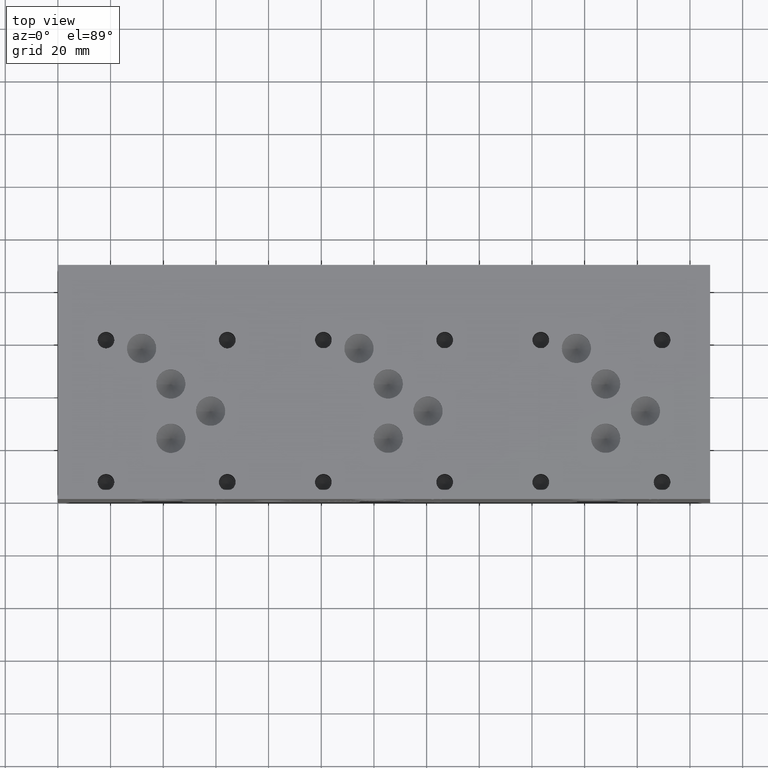
[diagram: clean part render]
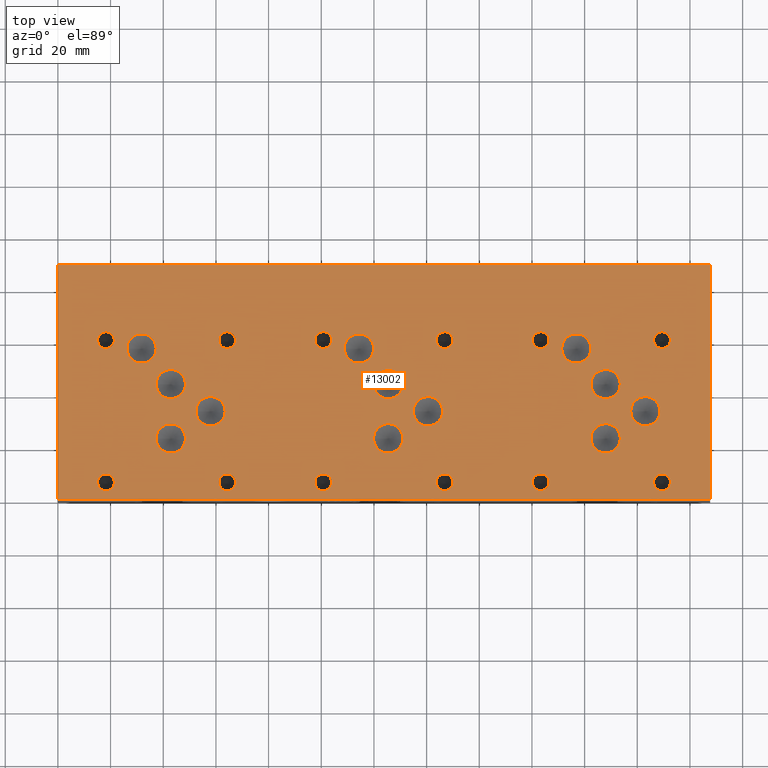
[diagram: same view with one face highlighted and labeled with its STEP entity id]
A machine part, top view. The second image highlights one B-rep face of the part: STEP entity #13002.
In plain terms, the highlighted planar face has unit normal (0, 0, 1).
Its self-contained STEP definition (entity closure, byte-faithful):
#405=CIRCLE('',#13536,5.55625);
#406=CIRCLE('',#13537,5.55625);
#409=CIRCLE('',#13542,5.5626);
#410=CIRCLE('',#13543,5.5626);
#413=CIRCLE('',#13548,5.5626);
#414=CIRCLE('',#13549,5.5626);
#417=CIRCLE('',#13554,5.5626);
#418=CIRCLE('',#13555,5.5626);
#421=CIRCLE('',#13560,5.5626);
#422=CIRCLE('',#13561,5.5626);
#425=CIRCLE('',#13566,5.5626);
#426=CIRCLE('',#13567,5.5626);
#429=CIRCLE('',#13572,5.5626);
#430=CIRCLE('',#13573,5.5626);
#433=CIRCLE('',#13578,5.5626);
#434=CIRCLE('',#13579,5.5626);
#437=CIRCLE('',#13584,5.5626);
#438=CIRCLE('',#13585,5.5626);
#441=CIRCLE('',#13590,5.5626);
#442=CIRCLE('',#13591,5.5626);
#445=CIRCLE('',#13596,5.5626);
#446=CIRCLE('',#13597,5.5626);
#449=CIRCLE('',#13602,5.5626);
#450=CIRCLE('',#13603,5.5626);
#456=CIRCLE('',#13612,3.175);
#457=CIRCLE('',#13613,3.175);
#463=CIRCLE('',#13623,3.175);
#464=CIRCLE('',#13624,3.175);
#470=CIRCLE('',#13634,3.175);
#471=CIRCLE('',#13635,3.175);
#477=CIRCLE('',#13645,3.175);
#478=CIRCLE('',#13646,3.175);
#484=CIRCLE('',#13656,3.175);
#485=CIRCLE('',#13657,3.175);
#491=CIRCLE('',#13667,3.175);
#492=CIRCLE('',#13668,3.175);
#498=CIRCLE('',#13678,3.175);
#499=CIRCLE('',#13679,3.175);
#505=CIRCLE('',#13689,3.175);
#506=CIRCLE('',#13690,3.175);
#512=CIRCLE('',#13700,3.175);
#513=CIRCLE('',#13701,3.175);
#519=CIRCLE('',#13711,3.175);
#520=CIRCLE('',#13712,3.175);
#526=CIRCLE('',#13722,3.175);
#527=CIRCLE('',#13723,3.175);
#533=CIRCLE('',#13733,3.175);
#534=CIRCLE('',#13734,3.175);
#985=FACE_BOUND('',#2432,.T.);
#986=FACE_BOUND('',#2433,.T.);
#987=FACE_BOUND('',#2434,.T.);
#988=FACE_BOUND('',#2435,.T.);
#989=FACE_BOUND('',#2436,.T.);
#990=FACE_BOUND('',#2437,.T.);
#991=FACE_BOUND('',#2438,.T.);
#992=FACE_BOUND('',#2439,.T.);
#993=FACE_BOUND('',#2440,.T.);
#994=FACE_BOUND('',#2441,.T.);
#995=FACE_BOUND('',#2442,.T.);
#996=FACE_BOUND('',#2443,.T.);
#997=FACE_BOUND('',#2444,.T.);
#998=FACE_BOUND('',#2445,.T.);
#999=FACE_BOUND('',#2446,.T.);
#1000=FACE_BOUND('',#2447,.T.);
#1001=FACE_BOUND('',#2448,.T.);
#1002=FACE_BOUND('',#2449,.T.);
#1003=FACE_BOUND('',#2450,.T.);
#1004=FACE_BOUND('',#2451,.T.);
#1005=FACE_BOUND('',#2452,.T.);
#1006=FACE_BOUND('',#2453,.T.);
#1007=FACE_BOUND('',#2454,.T.);
#1008=FACE_BOUND('',#2455,.T.);
#1673=FACE_OUTER_BOUND('',#2431,.T.);
#2431=EDGE_LOOP('',(#11391,#11392,#11393,#11394));
#2432=EDGE_LOOP('',(#11395,#11396));
#2433=EDGE_LOOP('',(#11397,#11398));
#2434=EDGE_LOOP('',(#11399,#11400));
#2435=EDGE_LOOP('',(#11401,#11402));
#2436=EDGE_LOOP('',(#11403,#11404));
#2437=EDGE_LOOP('',(#11405,#11406));
#2438=EDGE_LOOP('',(#11407,#11408));
#2439=EDGE_LOOP('',(#11409,#11410));
#2440=EDGE_LOOP('',(#11411,#11412));
#2441=EDGE_LOOP('',(#11413,#11414));
#2442=EDGE_LOOP('',(#11415,#11416));
#2443=EDGE_LOOP('',(#11417,#11418));
#2444=EDGE_LOOP('',(#11419,#11420));
#2445=EDGE_LOOP('',(#11421,#11422));
#2446=EDGE_LOOP('',(#11423,#11424));
#2447=EDGE_LOOP('',(#11425,#11426));
#2448=EDGE_LOOP('',(#11427,#11428));
#2449=EDGE_LOOP('',(#11429,#11430));
#2450=EDGE_LOOP('',(#11431,#11432));
#2451=EDGE_LOOP('',(#11433,#11434));
#2452=EDGE_LOOP('',(#11435,#11436));
#2453=EDGE_LOOP('',(#11437,#11438));
#2454=EDGE_LOOP('',(#11439,#11440));
#2455=EDGE_LOOP('',(#11441,#11442));
#2492=LINE('',#16460,#3685);
#3393=LINE('',#21027,#4586);
#3453=LINE('',#21300,#4646);
#3649=LINE('',#22402,#4842);
#3685=VECTOR('',#13805,10.);
#4586=VECTOR('',#15298,10.);
#4646=VECTOR('',#15412,10.);
#4842=VECTOR('',#16376,10.);
#4867=VERTEX_POINT('',#16457);
#4868=VERTEX_POINT('',#16459);
#5702=VERTEX_POINT('',#21026);
#5760=VERTEX_POINT('',#21298);
#5930=VERTEX_POINT('',#21987);
#5931=VERTEX_POINT('',#21988);
#5935=VERTEX_POINT('',#22000);
#5936=VERTEX_POINT('',#22001);
#5940=VERTEX_POINT('',#22013);
#5941=VERTEX_POINT('',#22014);
#5945=VERTEX_POINT('',#22026);
#5946=VERTEX_POINT('',#22027);
#5950=VERTEX_POINT('',#22039);
#5951=VERTEX_POINT('',#22040);
#5955=VERTEX_POINT('',#22052);
#5956=VERTEX_POINT('',#22053);
#5960=VERTEX_POINT('',#22065);
#5961=VERTEX_POINT('',#22066);
#5965=VERTEX_POINT('',#22078);
#5966=VERTEX_POINT('',#22079);
#5970=VERTEX_POINT('',#22091);
#5971=VERTEX_POINT('',#22092);
#5975=VERTEX_POINT('',#22104);
#5976=VERTEX_POINT('',#22105);
#5980=VERTEX_POINT('',#22117);
#5981=VERTEX_POINT('',#22118);
#5985=VERTEX_POINT('',#22130);
#5986=VERTEX_POINT('',#22131);
#5993=VERTEX_POINT('',#22150);
#5994=VERTEX_POINT('',#22151);
#6001=VERTEX_POINT('',#22172);
#6002=VERTEX_POINT('',#22173);
#6009=VERTEX_POINT('',#22194);
#6010=VERTEX_POINT('',#22195);
#6017=VERTEX_POINT('',#22216);
#6018=VERTEX_POINT('',#22217);
#6025=VERTEX_POINT('',#22238);
#6026=VERTEX_POINT('',#22239);
#6033=VERTEX_POINT('',#22260);
#6034=VERTEX_POINT('',#22261);
#6041=VERTEX_POINT('',#22282);
#6042=VERTEX_POINT('',#22283);
#6049=VERTEX_POINT('',#22304);
#6050=VERTEX_POINT('',#22305);
#6057=VERTEX_POINT('',#22326);
#6058=VERTEX_POINT('',#22327);
#6065=VERTEX_POINT('',#22348);
#6066=VERTEX_POINT('',#22349);
#6073=VERTEX_POINT('',#22370);
#6074=VERTEX_POINT('',#22371);
#6081=VERTEX_POINT('',#22392);
#6082=VERTEX_POINT('',#22393);
#6118=EDGE_CURVE('',#4868,#4867,#2492,.T.);
#7353=EDGE_CURVE('',#5702,#4868,#3393,.T.);
#7437=EDGE_CURVE('',#4867,#5760,#3453,.T.);
#7680=EDGE_CURVE('',#5930,#5931,#405,.T.);
#7681=EDGE_CURVE('',#5931,#5930,#406,.T.);
#7686=EDGE_CURVE('',#5935,#5936,#409,.T.);
#7687=EDGE_CURVE('',#5936,#5935,#410,.T.);
#7692=EDGE_CURVE('',#5940,#5941,#413,.T.);
#7693=EDGE_CURVE('',#5941,#5940,#414,.T.);
#7698=EDGE_CURVE('',#5945,#5946,#417,.T.);
#7699=EDGE_CURVE('',#5946,#5945,#418,.T.);
#7704=EDGE_CURVE('',#5950,#5951,#421,.T.);
#7705=EDGE_CURVE('',#5951,#5950,#422,.T.);
#7710=EDGE_CURVE('',#5955,#5956,#425,.T.);
#7711=EDGE_CURVE('',#5956,#5955,#426,.T.);
#7716=EDGE_CURVE('',#5960,#5961,#429,.T.);
#7717=EDGE_CURVE('',#5961,#5960,#430,.T.);
#7722=EDGE_CURVE('',#5965,#5966,#433,.T.);
#7723=EDGE_CURVE('',#5966,#5965,#434,.T.);
#7728=EDGE_CURVE('',#5970,#5971,#437,.T.);
#7729=EDGE_CURVE('',#5971,#5970,#438,.T.);
#7734=EDGE_CURVE('',#5975,#5976,#441,.T.);
#7735=EDGE_CURVE('',#5976,#5975,#442,.T.);
#7740=EDGE_CURVE('',#5980,#5981,#445,.T.);
#7741=EDGE_CURVE('',#5981,#5980,#446,.T.);
#7746=EDGE_CURVE('',#5985,#5986,#449,.T.);
#7747=EDGE_CURVE('',#5986,#5985,#450,.T.);
#7755=EDGE_CURVE('',#5993,#5994,#456,.T.);
#7756=EDGE_CURVE('',#5994,#5993,#457,.T.);
#7765=EDGE_CURVE('',#6001,#6002,#463,.T.);
#7766=EDGE_CURVE('',#6002,#6001,#464,.T.);
#7775=EDGE_CURVE('',#6009,#6010,#470,.T.);
#7776=EDGE_CURVE('',#6010,#6009,#471,.T.);
#7785=EDGE_CURVE('',#6017,#6018,#477,.T.);
#7786=EDGE_CURVE('',#6018,#6017,#478,.T.);
#7795=EDGE_CURVE('',#6025,#6026,#484,.T.);
#7796=EDGE_CURVE('',#6026,#6025,#485,.T.);
#7805=EDGE_CURVE('',#6033,#6034,#491,.T.);
#7806=EDGE_CURVE('',#6034,#6033,#492,.T.);
#7815=EDGE_CURVE('',#6041,#6042,#498,.T.);
#7816=EDGE_CURVE('',#6042,#6041,#499,.T.);
#7825=EDGE_CURVE('',#6049,#6050,#505,.T.);
#7826=EDGE_CURVE('',#6050,#6049,#506,.T.);
#7835=EDGE_CURVE('',#6057,#6058,#512,.T.);
#7836=EDGE_CURVE('',#6058,#6057,#513,.T.);
#7845=EDGE_CURVE('',#6065,#6066,#519,.T.);
#7846=EDGE_CURVE('',#6066,#6065,#520,.T.);
#7855=EDGE_CURVE('',#6073,#6074,#526,.T.);
#7856=EDGE_CURVE('',#6074,#6073,#527,.T.);
#7865=EDGE_CURVE('',#6081,#6082,#533,.T.);
#7866=EDGE_CURVE('',#6082,#6081,#534,.T.);
#7870=EDGE_CURVE('',#5760,#5702,#3649,.T.);
#11391=ORIENTED_EDGE('',*,*,#6118,.T.);
#11392=ORIENTED_EDGE('',*,*,#7437,.T.);
#11393=ORIENTED_EDGE('',*,*,#7870,.T.);
#11394=ORIENTED_EDGE('',*,*,#7353,.T.);
#11395=ORIENTED_EDGE('',*,*,#7680,.T.);
#11396=ORIENTED_EDGE('',*,*,#7681,.T.);
#11397=ORIENTED_EDGE('',*,*,#7686,.T.);
#11398=ORIENTED_EDGE('',*,*,#7687,.T.);
#11399=ORIENTED_EDGE('',*,*,#7692,.T.);
#11400=ORIENTED_EDGE('',*,*,#7693,.T.);
#11401=ORIENTED_EDGE('',*,*,#7698,.T.);
#11402=ORIENTED_EDGE('',*,*,#7699,.T.);
#11403=ORIENTED_EDGE('',*,*,#7704,.T.);
#11404=ORIENTED_EDGE('',*,*,#7705,.T.);
#11405=ORIENTED_EDGE('',*,*,#7710,.T.);
#11406=ORIENTED_EDGE('',*,*,#7711,.T.);
#11407=ORIENTED_EDGE('',*,*,#7716,.T.);
#11408=ORIENTED_EDGE('',*,*,#7717,.T.);
#11409=ORIENTED_EDGE('',*,*,#7722,.T.);
#11410=ORIENTED_EDGE('',*,*,#7723,.T.);
#11411=ORIENTED_EDGE('',*,*,#7728,.T.);
#11412=ORIENTED_EDGE('',*,*,#7729,.T.);
#11413=ORIENTED_EDGE('',*,*,#7734,.T.);
#11414=ORIENTED_EDGE('',*,*,#7735,.T.);
#11415=ORIENTED_EDGE('',*,*,#7740,.T.);
#11416=ORIENTED_EDGE('',*,*,#7741,.T.);
#11417=ORIENTED_EDGE('',*,*,#7746,.T.);
#11418=ORIENTED_EDGE('',*,*,#7747,.T.);
#11419=ORIENTED_EDGE('',*,*,#7755,.T.);
#11420=ORIENTED_EDGE('',*,*,#7756,.T.);
#11421=ORIENTED_EDGE('',*,*,#7765,.T.);
#11422=ORIENTED_EDGE('',*,*,#7766,.T.);
#11423=ORIENTED_EDGE('',*,*,#7775,.T.);
#11424=ORIENTED_EDGE('',*,*,#7776,.T.);
#11425=ORIENTED_EDGE('',*,*,#7785,.T.);
#11426=ORIENTED_EDGE('',*,*,#7786,.T.);
#11427=ORIENTED_EDGE('',*,*,#7795,.T.);
#11428=ORIENTED_EDGE('',*,*,#7796,.T.);
#11429=ORIENTED_EDGE('',*,*,#7805,.T.);
#11430=ORIENTED_EDGE('',*,*,#7806,.T.);
#11431=ORIENTED_EDGE('',*,*,#7815,.T.);
#11432=ORIENTED_EDGE('',*,*,#7816,.T.);
#11433=ORIENTED_EDGE('',*,*,#7825,.T.);
#11434=ORIENTED_EDGE('',*,*,#7826,.T.);
#11435=ORIENTED_EDGE('',*,*,#7835,.T.);
#11436=ORIENTED_EDGE('',*,*,#7836,.T.);
#11437=ORIENTED_EDGE('',*,*,#7845,.T.);
#11438=ORIENTED_EDGE('',*,*,#7846,.T.);
#11439=ORIENTED_EDGE('',*,*,#7855,.T.);
#11440=ORIENTED_EDGE('',*,*,#7856,.T.);
#11441=ORIENTED_EDGE('',*,*,#7865,.T.);
#11442=ORIENTED_EDGE('',*,*,#7866,.T.);
#11827=PLANE('',#13740);
#13002=ADVANCED_FACE('',(#1673,#985,#986,#987,#988,#989,#990,#991,#992,
#993,#994,#995,#996,#997,#998,#999,#1000,#1001,#1002,#1003,#1004,#1005,
#1006,#1007,#1008),#11827,.T.);
#13536=AXIS2_PLACEMENT_3D('',#21989,#15912,#15913);
#13537=AXIS2_PLACEMENT_3D('',#21990,#15914,#15915);
#13542=AXIS2_PLACEMENT_3D('',#22002,#15926,#15927);
#13543=AXIS2_PLACEMENT_3D('',#22003,#15928,#15929);
#13548=AXIS2_PLACEMENT_3D('',#22015,#15940,#15941);
#13549=AXIS2_PLACEMENT_3D('',#22016,#15942,#15943);
#13554=AXIS2_PLACEMENT_3D('',#22028,#15954,#15955);
#13555=AXIS2_PLACEMENT_3D('',#22029,#15956,#15957);
#13560=AXIS2_PLACEMENT_3D('',#22041,#15968,#15969);
#13561=AXIS2_PLACEMENT_3D('',#22042,#15970,#15971);
#13566=AXIS2_PLACEMENT_3D('',#22054,#15982,#15983);
#13567=AXIS2_PLACEMENT_3D('',#22055,#15984,#15985);
#13572=AXIS2_PLACEMENT_3D('',#22067,#15996,#15997);
#13573=AXIS2_PLACEMENT_3D('',#22068,#15998,#15999);
#13578=AXIS2_PLACEMENT_3D('',#22080,#16010,#16011);
#13579=AXIS2_PLACEMENT_3D('',#22081,#16012,#16013);
#13584=AXIS2_PLACEMENT_3D('',#22093,#16024,#16025);
#13585=AXIS2_PLACEMENT_3D('',#22094,#16026,#16027);
#13590=AXIS2_PLACEMENT_3D('',#22106,#16038,#16039);
#13591=AXIS2_PLACEMENT_3D('',#22107,#16040,#16041);
#13596=AXIS2_PLACEMENT_3D('',#22119,#16052,#16053);
#13597=AXIS2_PLACEMENT_3D('',#22120,#16054,#16055);
#13602=AXIS2_PLACEMENT_3D('',#22132,#16066,#16067);
#13603=AXIS2_PLACEMENT_3D('',#22133,#16068,#16069);
#13612=AXIS2_PLACEMENT_3D('',#22152,#16088,#16089);
#13613=AXIS2_PLACEMENT_3D('',#22153,#16090,#16091);
#13623=AXIS2_PLACEMENT_3D('',#22174,#16113,#16114);
#13624=AXIS2_PLACEMENT_3D('',#22175,#16115,#16116);
#13634=AXIS2_PLACEMENT_3D('',#22196,#16138,#16139);
#13635=AXIS2_PLACEMENT_3D('',#22197,#16140,#16141);
#13645=AXIS2_PLACEMENT_3D('',#22218,#16163,#16164);
#13646=AXIS2_PLACEMENT_3D('',#22219,#16165,#16166);
#13656=AXIS2_PLACEMENT_3D('',#22240,#16188,#16189);
#13657=AXIS2_PLACEMENT_3D('',#22241,#16190,#16191);
#13667=AXIS2_PLACEMENT_3D('',#22262,#16213,#16214);
#13668=AXIS2_PLACEMENT_3D('',#22263,#16215,#16216);
#13678=AXIS2_PLACEMENT_3D('',#22284,#16238,#16239);
#13679=AXIS2_PLACEMENT_3D('',#22285,#16240,#16241);
#13689=AXIS2_PLACEMENT_3D('',#22306,#16263,#16264);
#13690=AXIS2_PLACEMENT_3D('',#22307,#16265,#16266);
#13700=AXIS2_PLACEMENT_3D('',#22328,#16288,#16289);
#13701=AXIS2_PLACEMENT_3D('',#22329,#16290,#16291);
#13711=AXIS2_PLACEMENT_3D('',#22350,#16313,#16314);
#13712=AXIS2_PLACEMENT_3D('',#22351,#16315,#16316);
#13722=AXIS2_PLACEMENT_3D('',#22372,#16338,#16339);
#13723=AXIS2_PLACEMENT_3D('',#22373,#16340,#16341);
#13733=AXIS2_PLACEMENT_3D('',#22394,#16363,#16364);
#13734=AXIS2_PLACEMENT_3D('',#22395,#16365,#16366);
#13740=AXIS2_PLACEMENT_3D('',#22405,#16381,#16382);
#13805=DIRECTION('',(1.,0.,0.));
#15298=DIRECTION('',(0.,-1.,0.));
#15412=DIRECTION('',(0.,1.,0.));
#15912=DIRECTION('center_axis',(0.,0.,-1.));
#15913=DIRECTION('ref_axis',(1.,0.,0.));
#15914=DIRECTION('center_axis',(0.,0.,-1.));
#15915=DIRECTION('ref_axis',(1.,0.,0.));
#15926=DIRECTION('center_axis',(0.,0.,-1.));
#15927=DIRECTION('ref_axis',(1.,0.,0.));
#15928=DIRECTION('center_axis',(0.,0.,-1.));
#15929=DIRECTION('ref_axis',(1.,0.,0.));
#15940=DIRECTION('center_axis',(0.,0.,-1.));
#15941=DIRECTION('ref_axis',(1.,0.,0.));
#15942=DIRECTION('center_axis',(0.,0.,-1.));
#15943=DIRECTION('ref_axis',(1.,0.,0.));
#15954=DIRECTION('center_axis',(0.,0.,-1.));
#15955=DIRECTION('ref_axis',(1.,0.,0.));
#15956=DIRECTION('center_axis',(0.,0.,-1.));
#15957=DIRECTION('ref_axis',(1.,0.,0.));
#15968=DIRECTION('center_axis',(0.,0.,-1.));
#15969=DIRECTION('ref_axis',(1.,0.,0.));
#15970=DIRECTION('center_axis',(0.,0.,-1.));
#15971=DIRECTION('ref_axis',(1.,0.,0.));
#15982=DIRECTION('center_axis',(0.,0.,-1.));
#15983=DIRECTION('ref_axis',(1.,0.,0.));
#15984=DIRECTION('center_axis',(0.,0.,-1.));
#15985=DIRECTION('ref_axis',(1.,0.,0.));
#15996=DIRECTION('center_axis',(0.,0.,-1.));
#15997=DIRECTION('ref_axis',(1.,0.,0.));
#15998=DIRECTION('center_axis',(0.,0.,-1.));
#15999=DIRECTION('ref_axis',(1.,0.,0.));
#16010=DIRECTION('center_axis',(0.,0.,-1.));
#16011=DIRECTION('ref_axis',(1.,0.,0.));
#16012=DIRECTION('center_axis',(0.,0.,-1.));
#16013=DIRECTION('ref_axis',(1.,0.,0.));
#16024=DIRECTION('center_axis',(0.,0.,-1.));
#16025=DIRECTION('ref_axis',(1.,0.,0.));
#16026=DIRECTION('center_axis',(0.,0.,-1.));
#16027=DIRECTION('ref_axis',(1.,0.,0.));
#16038=DIRECTION('center_axis',(0.,0.,-1.));
#16039=DIRECTION('ref_axis',(1.,0.,0.));
#16040=DIRECTION('center_axis',(0.,0.,-1.));
#16041=DIRECTION('ref_axis',(1.,0.,0.));
#16052=DIRECTION('center_axis',(0.,0.,-1.));
#16053=DIRECTION('ref_axis',(1.,0.,0.));
#16054=DIRECTION('center_axis',(0.,0.,-1.));
#16055=DIRECTION('ref_axis',(1.,0.,0.));
#16066=DIRECTION('center_axis',(0.,0.,-1.));
#16067=DIRECTION('ref_axis',(1.,0.,0.));
#16068=DIRECTION('center_axis',(0.,0.,-1.));
#16069=DIRECTION('ref_axis',(1.,0.,0.));
#16088=DIRECTION('center_axis',(0.,0.,-1.));
#16089=DIRECTION('ref_axis',(1.,0.,0.));
#16090=DIRECTION('center_axis',(0.,0.,-1.));
#16091=DIRECTION('ref_axis',(1.,0.,0.));
#16113=DIRECTION('center_axis',(0.,0.,-1.));
#16114=DIRECTION('ref_axis',(1.,0.,0.));
#16115=DIRECTION('center_axis',(0.,0.,-1.));
#16116=DIRECTION('ref_axis',(1.,0.,0.));
#16138=DIRECTION('center_axis',(0.,0.,-1.));
#16139=DIRECTION('ref_axis',(1.,0.,0.));
#16140=DIRECTION('center_axis',(0.,0.,-1.));
#16141=DIRECTION('ref_axis',(1.,0.,0.));
#16163=DIRECTION('center_axis',(0.,0.,-1.));
#16164=DIRECTION('ref_axis',(1.,0.,0.));
#16165=DIRECTION('center_axis',(0.,0.,-1.));
#16166=DIRECTION('ref_axis',(1.,0.,0.));
#16188=DIRECTION('center_axis',(0.,0.,-1.));
#16189=DIRECTION('ref_axis',(1.,0.,0.));
#16190=DIRECTION('center_axis',(0.,0.,-1.));
#16191=DIRECTION('ref_axis',(1.,0.,0.));
#16213=DIRECTION('center_axis',(0.,0.,-1.));
#16214=DIRECTION('ref_axis',(1.,0.,0.));
#16215=DIRECTION('center_axis',(0.,0.,-1.));
#16216=DIRECTION('ref_axis',(1.,0.,0.));
#16238=DIRECTION('center_axis',(0.,0.,-1.));
#16239=DIRECTION('ref_axis',(1.,0.,0.));
#16240=DIRECTION('center_axis',(0.,0.,-1.));
#16241=DIRECTION('ref_axis',(1.,0.,0.));
#16263=DIRECTION('center_axis',(0.,0.,-1.));
#16264=DIRECTION('ref_axis',(1.,0.,0.));
#16265=DIRECTION('center_axis',(0.,0.,-1.));
#16266=DIRECTION('ref_axis',(1.,0.,0.));
#16288=DIRECTION('center_axis',(0.,0.,-1.));
#16289=DIRECTION('ref_axis',(1.,0.,0.));
#16290=DIRECTION('center_axis',(0.,0.,-1.));
#16291=DIRECTION('ref_axis',(1.,0.,0.));
#16313=DIRECTION('center_axis',(0.,0.,-1.));
#16314=DIRECTION('ref_axis',(1.,0.,0.));
#16315=DIRECTION('center_axis',(0.,0.,-1.));
#16316=DIRECTION('ref_axis',(1.,0.,0.));
#16338=DIRECTION('center_axis',(0.,0.,-1.));
#16339=DIRECTION('ref_axis',(1.,0.,0.));
#16340=DIRECTION('center_axis',(0.,0.,-1.));
#16341=DIRECTION('ref_axis',(1.,0.,0.));
#16363=DIRECTION('center_axis',(0.,0.,-1.));
#16364=DIRECTION('ref_axis',(1.,0.,0.));
#16365=DIRECTION('center_axis',(0.,0.,-1.));
#16366=DIRECTION('ref_axis',(1.,0.,0.));
#16376=DIRECTION('',(-1.,0.,0.));
#16381=DIRECTION('center_axis',(0.,0.,1.));
#16382=DIRECTION('ref_axis',(1.,0.,0.));
#16457=CARTESIAN_POINT('',(247.65,0.,88.9));
#16459=CARTESIAN_POINT('',(0.,0.,88.9));
#16460=CARTESIAN_POINT('',(0.,0.,88.9));
#21026=CARTESIAN_POINT('',(0.,88.9,88.9));
#21027=CARTESIAN_POINT('',(0.,88.9,88.9));
#21298=CARTESIAN_POINT('',(247.65,88.9,88.9));
#21300=CARTESIAN_POINT('',(247.65,0.,88.9));
#21987=CARTESIAN_POINT('',(48.41875,43.64228,88.9));
#21988=CARTESIAN_POINT('',(37.30625,43.64228,88.9));
#21989=CARTESIAN_POINT('Origin',(42.8625,43.64228,88.9));
#21990=CARTESIAN_POINT('Origin',(42.8625,43.64228,88.9));
#22000=CARTESIAN_POINT('',(213.5378,43.6499,88.9));
#22001=CARTESIAN_POINT('',(202.4126,43.6499,88.9));
#22002=CARTESIAN_POINT('Origin',(207.9752,43.6499,88.9));
#22003=CARTESIAN_POINT('Origin',(207.9752,43.6499,88.9));
#22013=CARTESIAN_POINT('',(228.6254,33.3629,88.9));
#22014=CARTESIAN_POINT('',(217.5002,33.3629,88.9));
#22015=CARTESIAN_POINT('Origin',(223.0628,33.3629,88.9));
#22016=CARTESIAN_POINT('Origin',(223.0628,33.3629,88.9));
#22026=CARTESIAN_POINT('',(130.9878,43.6499,88.9));
#22027=CARTESIAN_POINT('',(119.8626,43.6499,88.9));
#22028=CARTESIAN_POINT('Origin',(125.4252,43.6499,88.9));
#22029=CARTESIAN_POINT('Origin',(125.4252,43.6499,88.9));
#22039=CARTESIAN_POINT('',(146.0754,33.3375,88.9));
#22040=CARTESIAN_POINT('',(134.9502,33.3375,88.9));
#22041=CARTESIAN_POINT('Origin',(140.5128,33.3375,88.9));
#22042=CARTESIAN_POINT('Origin',(140.5128,33.3375,88.9));
#22052=CARTESIAN_POINT('',(37.3126,57.15,88.9));
#22053=CARTESIAN_POINT('',(26.1874,57.15,88.9));
#22054=CARTESIAN_POINT('Origin',(31.75,57.15,88.9));
#22055=CARTESIAN_POINT('Origin',(31.75,57.15,88.9));
#22065=CARTESIAN_POINT('',(63.5254,33.3248,88.9));
#22066=CARTESIAN_POINT('',(52.4002,33.3248,88.9));
#22067=CARTESIAN_POINT('Origin',(57.9628,33.3248,88.9));
#22068=CARTESIAN_POINT('Origin',(57.9628,33.3248,88.9));
#22078=CARTESIAN_POINT('',(48.43018,23.00732,88.9));
#22079=CARTESIAN_POINT('',(37.30498,23.00732,88.9));
#22080=CARTESIAN_POINT('Origin',(42.86758,23.00732,88.9));
#22081=CARTESIAN_POINT('Origin',(42.86758,23.00732,88.9));
#22091=CARTESIAN_POINT('',(119.8626,57.1627,88.9));
#22092=CARTESIAN_POINT('',(108.7374,57.1627,88.9));
#22093=CARTESIAN_POINT('Origin',(114.3,57.1627,88.9));
#22094=CARTESIAN_POINT('Origin',(114.3,57.1627,88.9));
#22104=CARTESIAN_POINT('',(130.9878,23.0251,88.9));
#22105=CARTESIAN_POINT('',(119.8626,23.0251,88.9));
#22106=CARTESIAN_POINT('Origin',(125.4252,23.0251,88.9));
#22107=CARTESIAN_POINT('Origin',(125.4252,23.0251,88.9));
#22117=CARTESIAN_POINT('',(202.4126,57.1627,88.9));
#22118=CARTESIAN_POINT('',(191.2874,57.1627,88.9));
#22119=CARTESIAN_POINT('Origin',(196.85,57.1627,88.9));
#22120=CARTESIAN_POINT('Origin',(196.85,57.1627,88.9));
#22130=CARTESIAN_POINT('',(213.5378,23.0251,88.9));
#22131=CARTESIAN_POINT('',(202.4126,23.0251,88.9));
#22132=CARTESIAN_POINT('Origin',(207.9752,23.0251,88.9));
#22133=CARTESIAN_POINT('Origin',(207.9752,23.0251,88.9));
#22150=CARTESIAN_POINT('',(232.5624,6.3627,88.9));
#22151=CARTESIAN_POINT('',(226.2124,6.3627,88.9));
#22152=CARTESIAN_POINT('Origin',(229.3874,6.3627,88.9));
#22153=CARTESIAN_POINT('Origin',(229.3874,6.3627,88.9));
#22172=CARTESIAN_POINT('',(186.5122,60.3377,88.9));
#22173=CARTESIAN_POINT('',(180.1622,60.3377,88.9));
#22174=CARTESIAN_POINT('Origin',(183.3372,60.3377,88.9));
#22175=CARTESIAN_POINT('Origin',(183.3372,60.3377,88.9));
#22194=CARTESIAN_POINT('',(150.0124,6.3627,88.9));
#22195=CARTESIAN_POINT('',(143.6624,6.3627,88.9));
#22196=CARTESIAN_POINT('Origin',(146.8374,6.3627,88.9));
#22197=CARTESIAN_POINT('Origin',(146.8374,6.3627,88.9));
#22216=CARTESIAN_POINT('',(103.9622,60.3377,88.9));
#22217=CARTESIAN_POINT('',(97.6122,60.3377,88.9));
#22218=CARTESIAN_POINT('Origin',(100.7872,60.3377,88.9));
#22219=CARTESIAN_POINT('Origin',(100.7872,60.3377,88.9));
#22238=CARTESIAN_POINT('',(67.4624,6.3627,88.9));
#22239=CARTESIAN_POINT('',(61.1124,6.3627,88.9));
#22240=CARTESIAN_POINT('Origin',(64.2874,6.3627,88.9));
#22241=CARTESIAN_POINT('Origin',(64.2874,6.3627,88.9));
#22260=CARTESIAN_POINT('',(21.4122,60.325,88.9));
#22261=CARTESIAN_POINT('',(15.0622,60.325,88.9));
#22262=CARTESIAN_POINT('Origin',(18.2372,60.325,88.9));
#22263=CARTESIAN_POINT('Origin',(18.2372,60.325,88.9));
#22282=CARTESIAN_POINT('',(67.4624,60.325,88.9));
#22283=CARTESIAN_POINT('',(61.1124,60.325,88.9));
#22284=CARTESIAN_POINT('Origin',(64.2874,60.325,88.9));
#22285=CARTESIAN_POINT('Origin',(64.2874,60.325,88.9));
#22304=CARTESIAN_POINT('',(21.4122,6.35,88.9));
#22305=CARTESIAN_POINT('',(15.0622,6.35,88.9));
#22306=CARTESIAN_POINT('Origin',(18.2372,6.35,88.9));
#22307=CARTESIAN_POINT('Origin',(18.2372,6.35,88.9));
#22326=CARTESIAN_POINT('',(150.0124,60.3377,88.9));
#22327=CARTESIAN_POINT('',(143.6624,60.3377,88.9));
#22328=CARTESIAN_POINT('Origin',(146.8374,60.3377,88.9));
#22329=CARTESIAN_POINT('Origin',(146.8374,60.3377,88.9));
#22348=CARTESIAN_POINT('',(103.9622,6.3627,88.9));
#22349=CARTESIAN_POINT('',(97.6122,6.3627,88.9));
#22350=CARTESIAN_POINT('Origin',(100.7872,6.3627,88.9));
#22351=CARTESIAN_POINT('Origin',(100.7872,6.3627,88.9));
#22370=CARTESIAN_POINT('',(232.5624,60.3377,88.9));
#22371=CARTESIAN_POINT('',(226.2124,60.3377,88.9));
#22372=CARTESIAN_POINT('Origin',(229.3874,60.3377,88.9));
#22373=CARTESIAN_POINT('Origin',(229.3874,60.3377,88.9));
#22392=CARTESIAN_POINT('',(186.5122,6.3627,88.9));
#22393=CARTESIAN_POINT('',(180.1622,6.3627,88.9));
#22394=CARTESIAN_POINT('Origin',(183.3372,6.3627,88.9));
#22395=CARTESIAN_POINT('Origin',(183.3372,6.3627,88.9));
#22402=CARTESIAN_POINT('',(247.65,88.9,88.9));
#22405=CARTESIAN_POINT('Origin',(123.825,44.45,88.9));